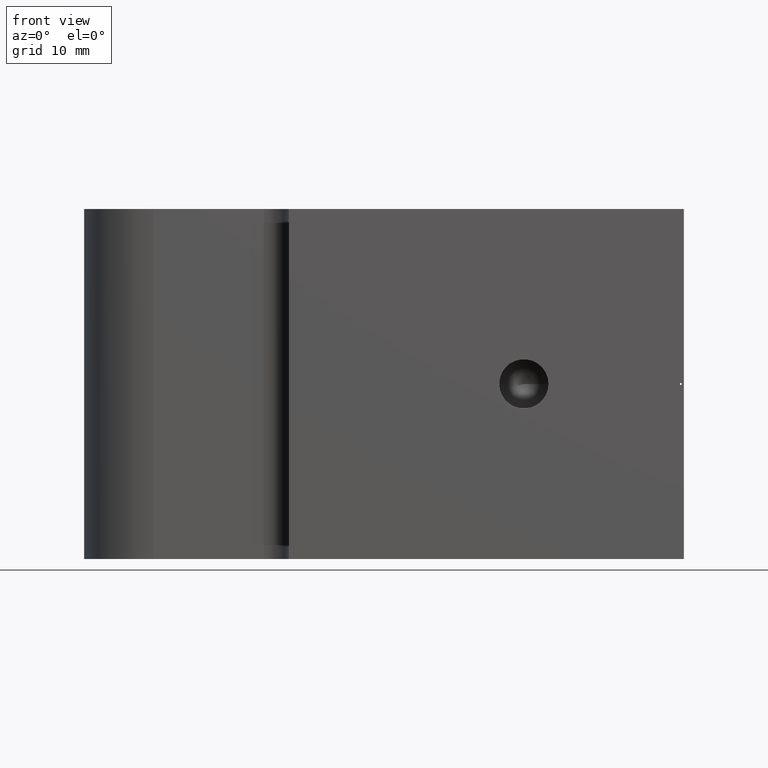
[diagram: clean part render]
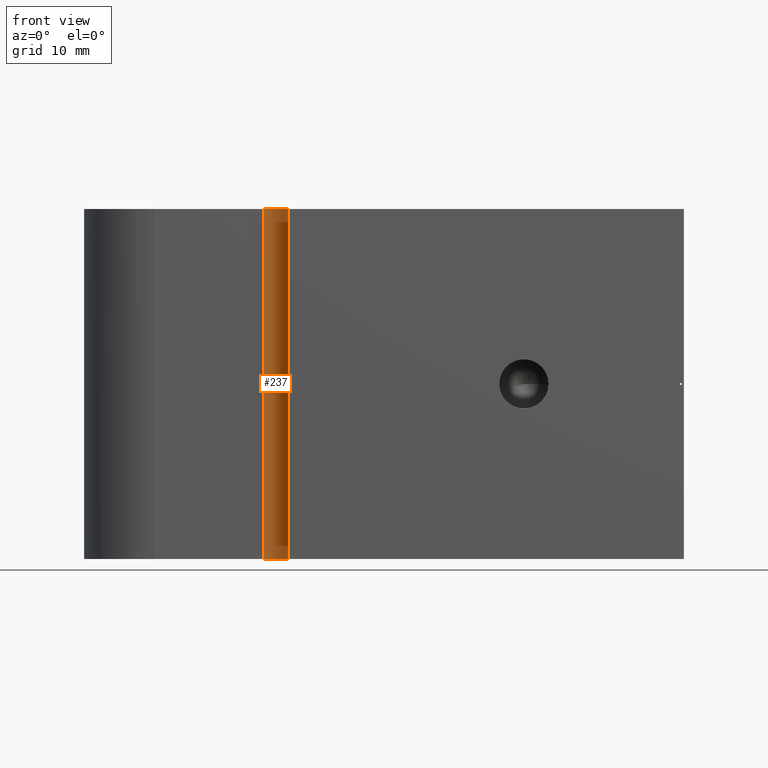
[diagram: same view with one face highlighted and labeled with its STEP entity id]
A machine part, front view. The second image highlights one B-rep face of the part: STEP entity #237.
In plain terms, the highlighted cylindrical surface (edge-blend (fillet) strip) has radius 2.5 mm, axis along (0, 0, 1).
Its self-contained STEP definition (entity closure, byte-faithful):
#21=LINE('',#426,#37);
#22=LINE('',#430,#38);
#37=VECTOR('',#312,35.);
#38=VECTOR('',#317,35.);
#67=CIRCLE('',#257,2.5);
#71=CIRCLE('',#263,2.5);
#81=FACE_OUTER_BOUND('',#99,.T.);
#99=EDGE_LOOP('',(#184,#185,#186,#187));
#120=VERTEX_POINT('',#408);
#121=VERTEX_POINT('',#410);
#127=VERTEX_POINT('',#424);
#128=VERTEX_POINT('',#428);
#142=EDGE_CURVE('',#120,#121,#67,.T.);
#150=EDGE_CURVE('',#127,#120,#21,.T.);
#151=EDGE_CURVE('',#128,#127,#71,.T.);
#152=EDGE_CURVE('',#128,#121,#22,.T.);
#184=ORIENTED_EDGE('',*,*,#150,.F.);
#185=ORIENTED_EDGE('',*,*,#151,.F.);
#186=ORIENTED_EDGE('',*,*,#152,.T.);
#187=ORIENTED_EDGE('',*,*,#142,.F.);
#227=CYLINDRICAL_SURFACE('',#262,2.5);
#237=ADVANCED_FACE('',(#81),#227,.F.);
#257=AXIS2_PLACEMENT_3D('',#411,#298,#299);
#262=AXIS2_PLACEMENT_3D('',#427,#313,#314);
#263=AXIS2_PLACEMENT_3D('',#429,#315,#316);
#298=DIRECTION('center_axis',(0.,0.,1.));
#299=DIRECTION('ref_axis',(1.,0.,0.));
#312=DIRECTION('',(0.,0.,-1.));
#313=DIRECTION('center_axis',(0.,0.,1.));
#314=DIRECTION('ref_axis',(1.,0.,0.));
#315=DIRECTION('center_axis',(0.,0.,-1.));
#316=DIRECTION('ref_axis',(1.,0.,0.));
#317=DIRECTION('',(0.,0.,-1.));
#408=CARTESIAN_POINT('',(-20.5,4.,-17.5));
#410=CARTESIAN_POINT('',(-23.,6.5,-17.5));
#411=CARTESIAN_POINT('Origin',(-23.,4.,-17.5));
#424=CARTESIAN_POINT('',(-20.5,4.,17.5));
#426=CARTESIAN_POINT('',(-20.5,4.,0.));
#427=CARTESIAN_POINT('Origin',(-23.,4.,0.));
#428=CARTESIAN_POINT('',(-23.,6.5,17.5));
#429=CARTESIAN_POINT('Origin',(-23.,4.,17.5));
#430=CARTESIAN_POINT('',(-23.,6.5,0.));